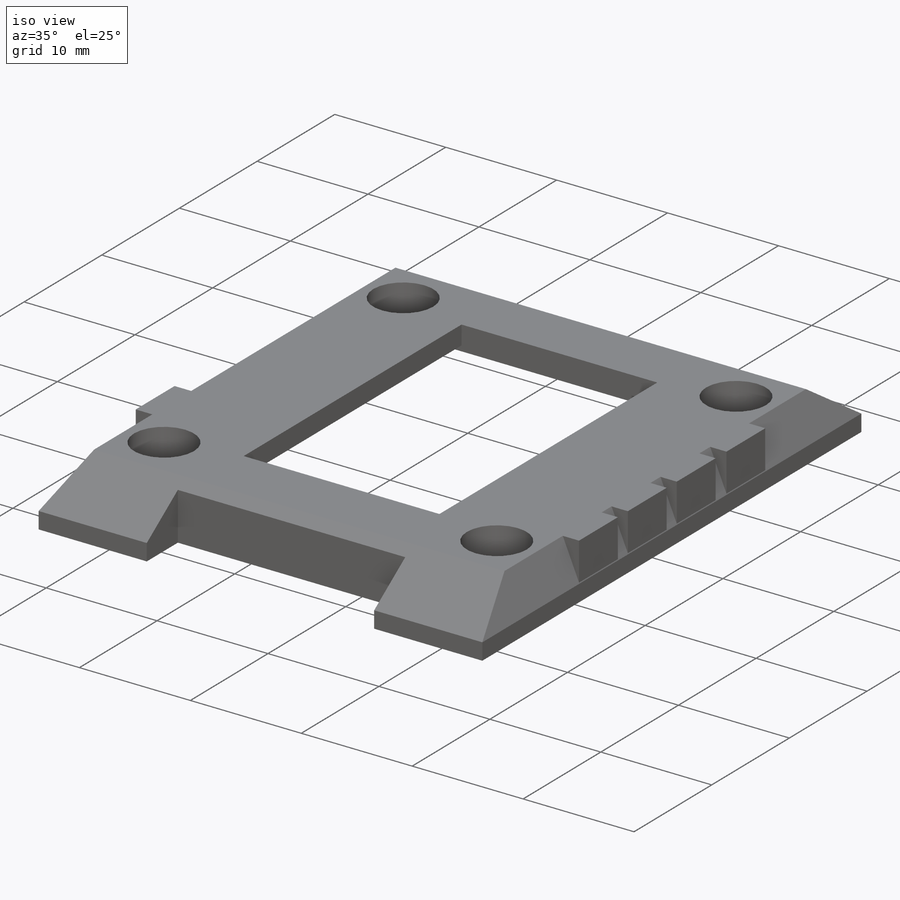
[diagram: iso view]
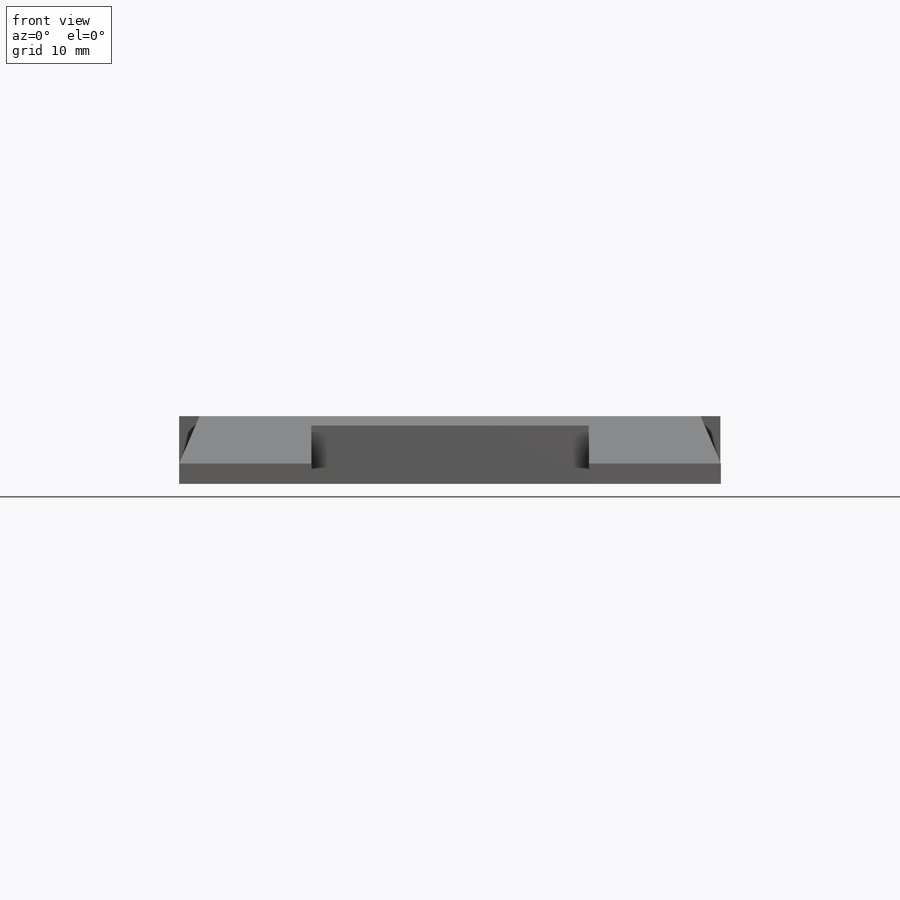
[diagram: front view]
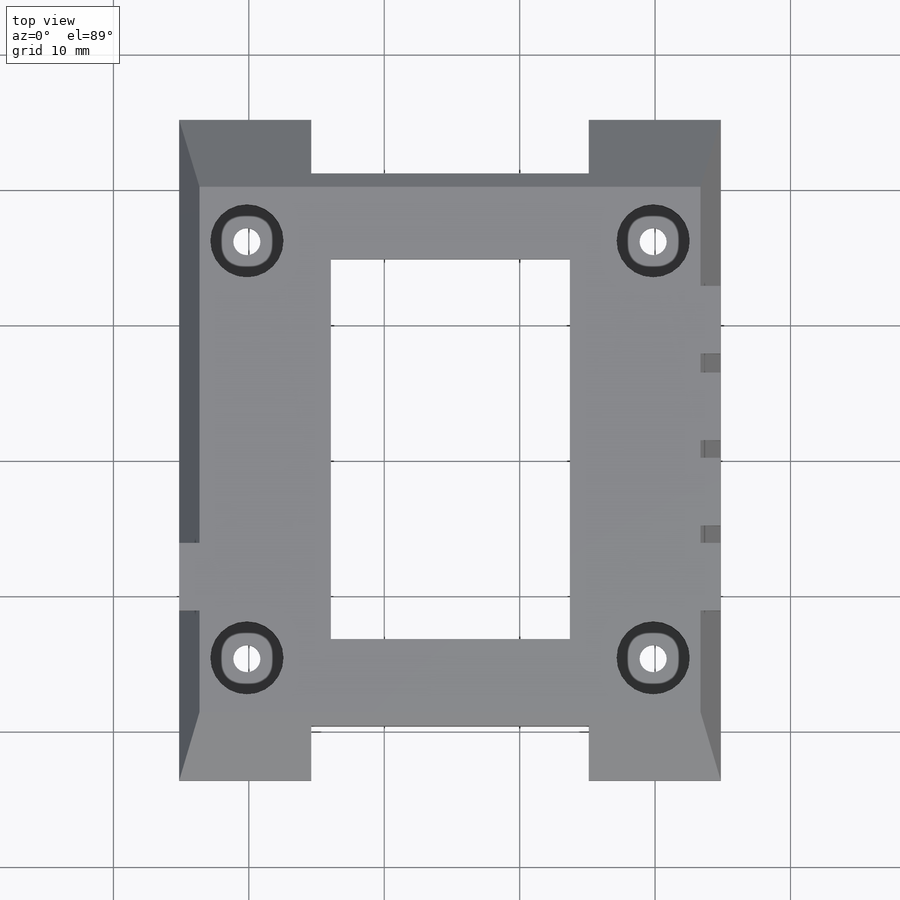
[diagram: top view]
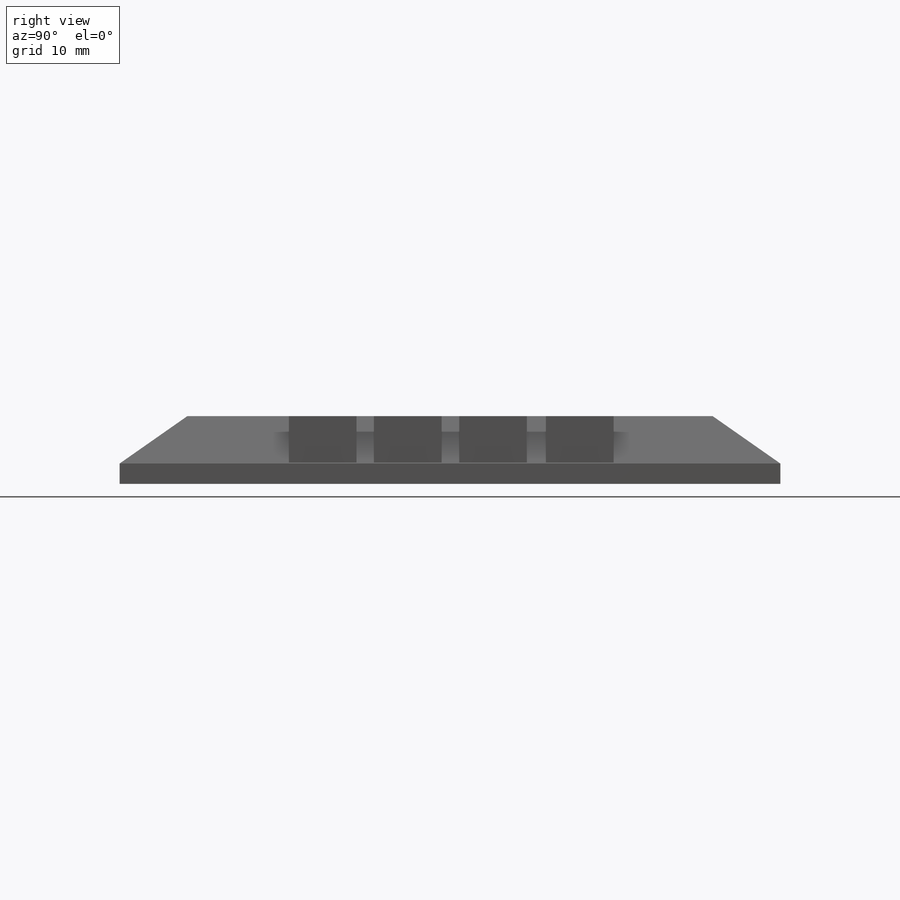
[diagram: right view]
SOLIDWORKS PART (.sldprt)
format: sldprt  version: not decoded by parser v0  size: 502,784 bytes
history: native  units: mm
features: sketch x13, cut_extrude x10, extrude x2, material x1, cut_revolve x1, fillet x1 (+13 scaffold rows collapsed)
feature tree (41):
  scaffold x13  (default folders/planes/origin — collapsed)
  material  "Material <not specified>"
  sketch  "Sketch1"  dims[D1=48.8mm D2=40.0mm]
  extrude  "Boss-Extrude1"  Depth=5mm
  sketch  "Sketch2"  dims[D1=20.5mm D2=8.0mm]
  cut_extrude  "Cut-Extrude1"  [1 undecoded]
  sketch  "Sketch3"  dims[D3=5.4mm D1=30.0mm D2=30.8mm]
  cut_extrude  "Cut-Extrude2"  Depth=2.8mm
  sketch  "Sketch5"  dims[D1=2.0mm]
  cut_extrude  "Cut-Extrude3"  [1 undecoded]
  sketch  "Sketch6"  dims[c1.D1=6.0mm c1.D2=5.0mm c1.D3=1.5mm c2.D1=5.0mm]
  cut_extrude  "Cut-Extrude4"  [1 undecoded]
  sketch  "Sketch7"  dims[D1=1.5mm D2=3.5mm]
  cut_extrude  "Cut-Extrude5"  [1 undecoded]
  sketch  "Sketch8"  dims[c1.D5=2.0mm c1.D1=17.65mm c1.D2=28.05mm c1.D3=1.4mm c1.D4=6.2mm c2.D5=6.2mm]
  cut_extrude  "Cut-Extrude6"  [1 undecoded]
  sketch  "Sketch9"  dims[c1.D1=5.0mm c1.D2=3.0mm c1.D3=5.0mm c2.D3=90.0deg c3.D3=~36.421327mm c3.D1=33.98mm c3.D2=5.0mm c4.D3=27.58mm c4.D4=21.28mm c4.D5=15.0mm c4.D6=15.0mm c4.D7=5.0mm]
  extrude  "Boss-Extrude2"  [1 undecoded]
  sketch  "Sketch10"  dims[D1=38.0mm D2=35.8mm]
  cut_extrude  "Cut-Extrude7"  Depth=0.8mm
  sketch  "Sketch11"  dims[D1=36.0mm D2=24.0mm]
  cut_extrude  "Cut-Extrude8"  Depth=2.8mm
  sketch  "Sketch12"  dims[D1=4.0mm D2=8.0mm D3=11.2mm D4=26.7mm]
  cut_extrude  "Cut-Extrude9"  Depth=3.3mm
  sketch  "Sketch13"  dims[c1.D1=2.0mm c1.D2=2.0mm c1.D3=2.0mm c1.D4=2.0mm c1.D5=2.0mm c1.D6=2.0mm c1.D8=2.0mm c2.D1=3.0mm c2.D2=3.0mm c2.D3=3.0mm c2.D4=3.0mm c2.D5=3.0mm c2.D6=3.0mm c2.D7=3.0mm c2.D8=3.0mm]
  cut_extrude  "Cut-Extrude10"  Depth=3.3mm
  sketch  "Sketch14"  dims[c1.D1=~27.228602mm c2.D1=0.5mm c2.D2=3.8mm c2.D3=4.5mm c2.D4=3.2mm c2.D5=4.5mm]
  cut_revolve  "Cut-Revolve1"  Angle=360deg
  fillet  "Fillet1"  Radius=2mm
decode coverage: 21 of 27 modeling features carry decoded parameters
note: ~ marks probable driven/reference dimensions
note: 6 parameter values undecoded
summary: no parameter record found for 6 features
note: suppression state not decoded; provenance and decode notes live in map.json
